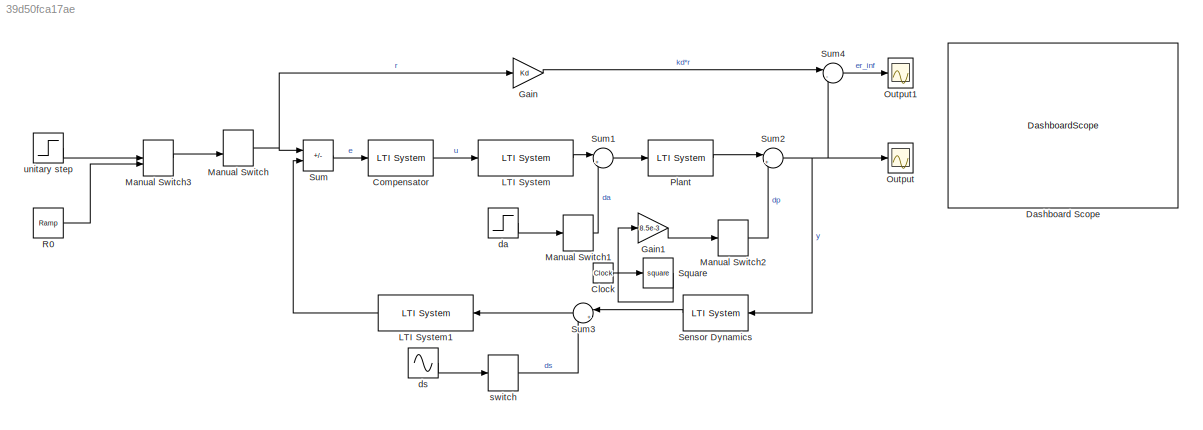
MODEL slx_39d50fca17ae
KIND model
CONFIG AbsTol = auto
CONFIG EnableMultiTasking = off
CONFIG FixedStep = auto
CONFIG MaxStep = 0.001
CONFIG MinStep = auto
CONFIG RelTol = 1e-3
CONFIG SampleTimeConstraint = Unconstrained
CONFIG Solver = VariableStepAuto
CONFIG SolverName = VariableStepAuto
CONFIG StartTime = 0.0
CONFIG StopTime = 1000
BLOCK [Clock] Clock
BLOCK [Reference] Compensator  REF=cstblocks/LTI System
  Ports = [1, 1]
  SourceBlock = cstblocks/LTI System
  SourceProductBaseCode = CT
  SourceType = LTI Block
BLOCK [DashboardScope] Dashboard Scope
BLOCK [Gain] Gain
  Gain = Kd
BLOCK [Gain] Gain1
  Gain = 8.5e-3
BLOCK [Reference] LTI System  REF=cstblocks/LTI System
  Ports = [1, 1]
  SourceBlock = cstblocks/LTI System
  SourceProductBaseCode = CT
  SourceType = LTI Block
BLOCK [Reference] LTI System1  REF=cstblocks/LTI System
  Ports = [1, 1]
  SourceBlock = cstblocks/LTI System
  SourceProductBaseCode = CT
  SourceType = LTI Block
BLOCK [ManualSwitch] Manual Switch
BLOCK [ManualSwitch] Manual Switch1
  CurrentSetting = 0
BLOCK [ManualSwitch] Manual Switch2
  CurrentSetting = 0
BLOCK [ManualSwitch] Manual Switch3
BLOCK [Scope] Output
  Floating = off
  NumInputPorts = 1
  Ports = [1]
  ScopeSpecificationString = Simulink.scopes.TimeScopeBlockCfg('CurrentConfiguration', extmgr.ConfigurationSet(extmgr.Configuration('Core','General UI',true),extmgr.Configuration('Core','Source UI',true),extmgr.Configuration('Sources','WiredSimulink',true),extmgr.Configuration('Visuals','Time Domain',true),extmgr.Configuration('Tools','Plot Navigation',true),extmgr.Configuration('Tools','Measurements',true)),'Version','2020a'...<+1ch>
BLOCK [Scope] Output1
  Floating = off
  NumInputPorts = 1
  Ports = [1]
  ScopeSpecificationString = Simulink.scopes.TimeScopeBlockCfg('CurrentConfiguration', extmgr.ConfigurationSet(extmgr.Configuration('Core','General UI',true),extmgr.Configuration('Core','Source UI',true),extmgr.Configuration('Sources','WiredSimulink',true,'DataLoggingVariableName','ScopeData1'),extmgr.Configuration('Visuals','Time Domain',true,'SerializedDisplays',{struct('MinYLimReal','-16.65296','MaxYLimReal','1.85033','YLa...<+1369ch>
BLOCK [Reference] Plant  REF=cstblocks/LTI System
  Ports = [1, 1]
  SourceBlock = cstblocks/LTI System
  SourceProductBaseCode = CT
  SourceType = LTI Block
BLOCK [Reference] R0  REF=simulink/Sources/Ramp
  Ports = [0, 1]
  SourceBlock = simulink/Sources/Ramp
  SourceProductBaseCode = SL
  SourceType = Ramp
BLOCK [Reference] Sensor Dynamics  REF=cstblocks/LTI System
  Ports = [1, 1]
  SourceBlock = cstblocks/LTI System
  SourceProductBaseCode = CT
  SourceType = LTI Block
BLOCK [Math] Square
  Operator = square
  Ports = [1, 1]
BLOCK [Sum] Sum
  IconShape = rectangular
  Inputs = +-
  Ports = [2, 1]
BLOCK [Sum] Sum1
  Inputs = |++
  Ports = [2, 1]
BLOCK [Sum] Sum2
  Inputs = |++
  Ports = [2, 1]
BLOCK [Sum] Sum3
  Inputs = |++
  Ports = [2, 1]
BLOCK [Sum] Sum4
  Inputs = |-+
  Ports = [2, 1]
BLOCK [Step] da
  After = 2.5e-03
  SampleTime = 0
  Time = 0
BLOCK [Sin] ds
  Amplitude = 5e-02
  Frequency = 40
  Ports = [0, 1]
  SampleTime = 0
BLOCK [ManualSwitch] switch
  CurrentSetting = 0
BLOCK [Step] unitary step
  SampleTime = 0
  Time = 0
LINE Clock:1 -> Square:1
LINE Compensator:1 -> LTI System:1
LINE Gain1:1 -> Manual Switch2:1
LINE Gain:1 -> Sum4:1
LINE LTI System1:1 -> Sum:2
LINE LTI System:1 -> Sum1:1
LINE Manual Switch1:1 -> Sum1:2
LINE Manual Switch2:1 -> Sum2:2
LINE Manual Switch3:1 -> Manual Switch:2
NET Manual Switch:1 -> Gain:1, Sum:1
LINE Plant:1 -> Sum2:1
LINE R0:1 -> Manual Switch3:2
LINE Sensor Dynamics:1 -> Sum3:1
LINE Square:1 -> Gain1:1
LINE Sum1:1 -> Plant:1
NET Sum2:1 -> Output:1, Sensor Dynamics:1, Sum4:2
LINE Sum3:1 -> LTI System1:1
LINE Sum4:1 -> Output1:1
LINE Sum:1 -> Compensator:1
LINE da:1 -> Manual Switch1:1
LINE ds:1 -> switch:1
LINE switch:1 -> Sum3:2
LINE unitary step:1 -> Manual Switch3:1
note: NET lines group one-source signal fan-out (src -> all destinations, sorted); 1:1 wires keep LINE
